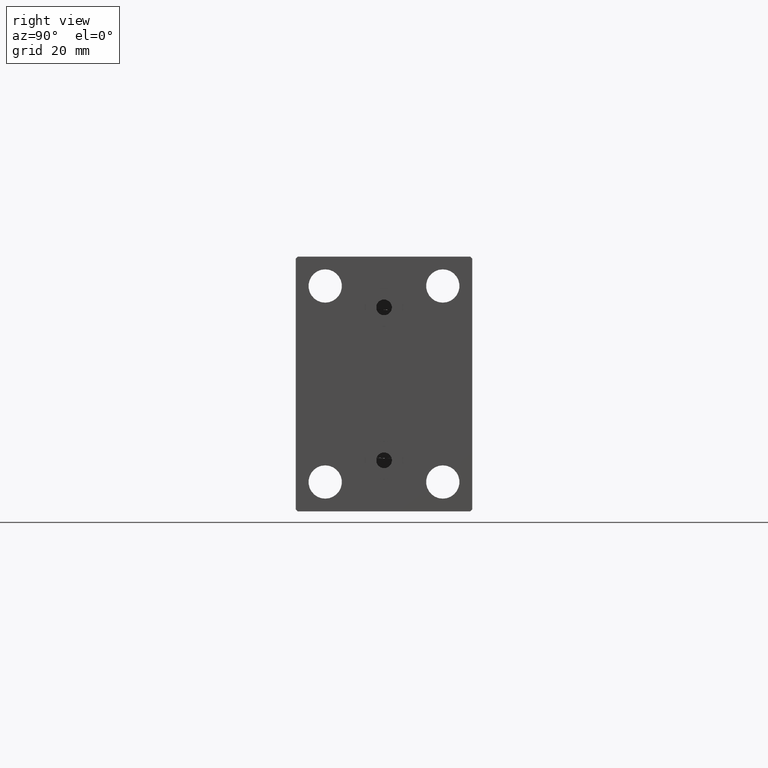
[diagram: clean part render]
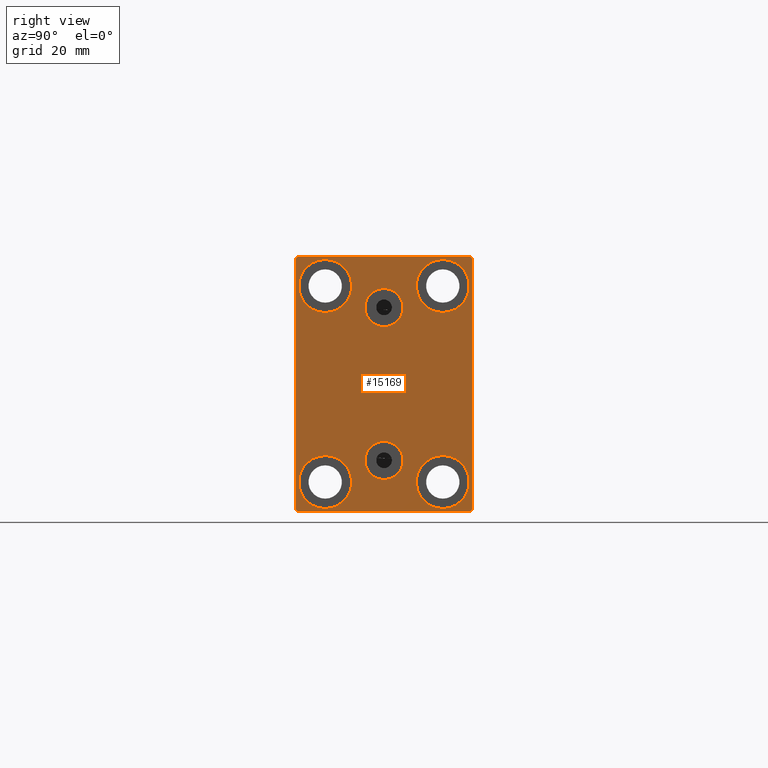
[diagram: same view with one face highlighted and labeled with its STEP entity id]
A machine part, right view. The second image highlights one B-rep face of the part: STEP entity #15169.
In plain terms, the highlighted planar face has unit normal (1, 0, 0).
Its self-contained STEP definition (entity closure, byte-faithful):
#375 = FACE_BOUND ( 'NONE', #43418, .T. ) ;
#522 = DIRECTION ( 'NONE',  ( 0.000000000000000000, 0.000000000000000000, 1.000000000000000000 ) ) ;
#866 = DIRECTION ( 'NONE',  ( -1.000000000000000000, -0.000000000000000000, -0.000000000000000000 ) ) ;
#1616 = VERTEX_POINT ( 'NONE', #44209 ) ;
#1648 = AXIS2_PLACEMENT_3D ( 'NONE', #24427, #32021, #522 ) ;
#1709 = ORIENTED_EDGE ( 'NONE', *, *, #26808, .T. ) ;
#1815 = EDGE_LOOP ( 'NONE', ( #39728, #1709 ) ) ;
#2076 = EDGE_CURVE ( 'NONE', #30644, #5945, #23333, .T. ) ;
#2148 = VERTEX_POINT ( 'NONE', #15151 ) ;
#2380 = ORIENTED_EDGE ( 'NONE', *, *, #27208, .T. ) ;
#2989 = EDGE_CURVE ( 'NONE', #7646, #6230, #31747, .T. ) ;
#3052 = CARTESIAN_POINT ( 'NONE',  ( 130.0000000000000000, -3.571693674697836683E-15, 19.50000000000000355 ) ) ;
#3545 = VECTOR ( 'NONE', #30840, 1000.000000000000000 ) ;
#3552 = DIRECTION ( 'NONE',  ( -1.000000000000000000, -0.000000000000000000, -0.000000000000000000 ) ) ;
#3570 = ORIENTED_EDGE ( 'NONE', *, *, #36454, .T. ) ;
#3635 = EDGE_LOOP ( 'NONE', ( #35395, #19759 ) ) ;
#3898 = CARTESIAN_POINT ( 'NONE',  ( 130.0000000000000000, 2.388061258337338150E-15, -19.49999999999999645 ) ) ;
#4180 = EDGE_CURVE ( 'NONE', #11501, #4599, #18257, .T. ) ;
#4554 = CARTESIAN_POINT ( 'NONE',  ( 130.0000000000000000, 22.00000000000002132, 32.50000000000000000 ) ) ;
#4599 = VERTEX_POINT ( 'NONE', #36423 ) ;
#4834 = AXIS2_PLACEMENT_3D ( 'NONE', #33937, #27026, #41506 ) ;
#5241 = VECTOR ( 'NONE', #21279, 1000.000000000000114 ) ;
#5645 = CARTESIAN_POINT ( 'NONE',  ( 130.0000000000000000, 22.00000000000000000, -32.50000000000000711 ) ) ;
#5945 = VERTEX_POINT ( 'NONE', #36323 ) ;
#6230 = VERTEX_POINT ( 'NONE', #4554 ) ;
#6514 = EDGE_CURVE ( 'NONE', #5945, #30644, #38165, .T. ) ;
#6547 = EDGE_CURVE ( 'NONE', #1616, #7646, #39887, .T. ) ;
#6916 = EDGE_CURVE ( 'NONE', #9654, #35726, #27882, .T. ) ;
#7312 = CIRCLE ( 'NONE', #39719, 4.859999999999999432 ) ;
#7496 = LINE ( 'NONE', #11397, #5241 ) ;
#7507 = CIRCLE ( 'NONE', #28777, 6.749999999999999112 ) ;
#7646 = VERTEX_POINT ( 'NONE', #22269 ) ;
#7908 = LINE ( 'NONE', #29289, #20548 ) ;
#8160 = CARTESIAN_POINT ( 'NONE',  ( 130.0000000000000000, 15.00000000000000355, 25.00000000000000000 ) ) ;
#8164 = DIRECTION ( 'NONE',  ( 0.000000000000000000, 0.000000000000000000, -1.000000000000000000 ) ) ;
#8564 = EDGE_CURVE ( 'NONE', #2148, #15557, #26820, .T. ) ;
#9326 = DIRECTION ( 'NONE',  ( 1.000000000000000000, 0.000000000000000000, 0.000000000000000000 ) ) ;
#9654 = VERTEX_POINT ( 'NONE', #38373 ) ;
#10001 = CARTESIAN_POINT ( 'NONE',  ( 130.0000000000000000, 14.99999999999999645, -25.00000000000000000 ) ) ;
#10487 = DIRECTION ( 'NONE',  ( 0.000000000000000000, 0.000000000000000000, -1.000000000000000000 ) ) ;
#10491 = FACE_BOUND ( 'NONE', #3635, .T. ) ;
#10529 = AXIS2_PLACEMENT_3D ( 'NONE', #3898, #17900, #11005 ) ;
#10653 = EDGE_LOOP ( 'NONE', ( #10700, #10941 ) ) ;
#10700 = ORIENTED_EDGE ( 'NONE', *, *, #2076, .T. ) ;
#10847 = CARTESIAN_POINT ( 'NONE',  ( 130.0000000000000000, -15.00000000000000355, -31.75000000000000000 ) ) ;
#10906 = DIRECTION ( 'NONE',  ( 0.000000000000000000, 0.000000000000000000, 1.000000000000000000 ) ) ;
#10937 = CARTESIAN_POINT ( 'NONE',  ( 130.0000000000000000, 27.25000000000000711, -27.25000000000000711 ) ) ;
#10941 = ORIENTED_EDGE ( 'NONE', *, *, #6514, .T. ) ;
#11005 = DIRECTION ( 'NONE',  ( 0.000000000000000000, 0.000000000000000000, 1.000000000000000000 ) ) ;
#11131 = CARTESIAN_POINT ( 'NONE',  ( 130.0000000000000000, -14.99999999999999645, 25.00000000000000000 ) ) ;
#11222 = VERTEX_POINT ( 'NONE', #5645 ) ;
#11294 = ORIENTED_EDGE ( 'NONE', *, *, #45358, .T. ) ;
#11397 = CARTESIAN_POINT ( 'NONE',  ( 130.0000000000000000, -27.25000000000033040, -27.24999999999957367 ) ) ;
#11501 = VERTEX_POINT ( 'NONE', #10847 ) ;
#12257 = EDGE_CURVE ( 'NONE', #15557, #38896, #7496, .T. ) ;
#12377 = CARTESIAN_POINT ( 'NONE',  ( 130.0000000000000000, 2.983239602722951428E-15, -14.63999999999999702 ) ) ;
#12947 = ORIENTED_EDGE ( 'NONE', *, *, #42979, .T. ) ;
#13110 = EDGE_CURVE ( 'NONE', #31593, #35324, #7507, .T. ) ;
#13918 = DIRECTION ( 'NONE',  ( 0.000000000000000000, -0.7071067811865474617, -0.7071067811865474617 ) ) ;
#14390 = FACE_OUTER_BOUND ( 'NONE', #29024, .T. ) ;
#14833 = FACE_BOUND ( 'NONE', #1815, .T. ) ;
#15151 = CARTESIAN_POINT ( 'NONE',  ( 130.0000000000000000, -22.50000000000000711, 31.99999999999999289 ) ) ;
#15157 = CARTESIAN_POINT ( 'NONE',  ( 130.0000000000000000, -21.99999999999999289, 32.49999999999999289 ) ) ;
#15169 = ADVANCED_FACE ( 'NONE', ( #21052, #41980, #14833, #10491, #24505, #375, #14390 ), #43998, .T. ) ;
#15557 = VERTEX_POINT ( 'NONE', #31084 ) ;
#16102 = ORIENTED_EDGE ( 'NONE', *, *, #20919, .F. ) ;
#16174 = CARTESIAN_POINT ( 'NONE',  ( 130.0000000000000000, 15.00000000000000355, 18.25000000000000355 ) ) ;
#16888 = DIRECTION ( 'NONE',  ( 0.000000000000000000, 0.000000000000000000, 1.000000000000000000 ) ) ;
#17635 = VECTOR ( 'NONE', #20156, 1000.000000000000000 ) ;
#17870 = CIRCLE ( 'NONE', #34036, 4.859999999999999432 ) ;
#17900 = DIRECTION ( 'NONE',  ( 1.000000000000000000, 0.000000000000000000, -0.000000000000000000 ) ) ;
#18257 = CIRCLE ( 'NONE', #22658, 6.749999999999999112 ) ;
#18324 = AXIS2_PLACEMENT_3D ( 'NONE', #8160, #36216, #18500 ) ;
#18500 = DIRECTION ( 'NONE',  ( 0.000000000000000000, 0.000000000000000000, 1.000000000000000000 ) ) ;
#18728 = CARTESIAN_POINT ( 'NONE',  ( 130.0000000000000000, 0.000000000000000000, 0.000000000000000000 ) ) ;
#18944 = CARTESIAN_POINT ( 'NONE',  ( 130.0000000000000000, 22.50000000000000000, -32.50000000000000711 ) ) ;
#19454 = CARTESIAN_POINT ( 'NONE',  ( 130.0000000000000000, -22.50000000000000711, 32.49999999999999289 ) ) ;
#19467 = VECTOR ( 'NONE', #13918, 1000.000000000000114 ) ;
#19759 = ORIENTED_EDGE ( 'NONE', *, *, #6916, .T. ) ;
#20081 = CIRCLE ( 'NONE', #10529, 4.859999999999999432 ) ;
#20156 = DIRECTION ( 'NONE',  ( 0.000000000000000000, 0.000000000000000000, -1.000000000000000000 ) ) ;
#20369 = ORIENTED_EDGE ( 'NONE', *, *, #12257, .T. ) ;
#20548 = VECTOR ( 'NONE', #21925, 1000.000000000000000 ) ;
#20554 = EDGE_CURVE ( 'NONE', #28574, #25941, #20081, .T. ) ;
#20919 = EDGE_CURVE ( 'NONE', #31710, #26143, #17870, .T. ) ;
#21052 = FACE_BOUND ( 'NONE', #33113, .T. ) ;
#21121 = AXIS2_PLACEMENT_3D ( 'NONE', #34957, #41839, #24591 ) ;
#21279 = DIRECTION ( 'NONE',  ( -0.000000000000000000, 0.7071067811865376918, -0.7071067811865573427 ) ) ;
#21582 = ORIENTED_EDGE ( 'NONE', *, *, #35468, .F. ) ;
#21727 = CARTESIAN_POINT ( 'NONE',  ( 130.0000000000000000, -3.571693674697836683E-15, 19.50000000000000355 ) ) ;
#21744 = ORIENTED_EDGE ( 'NONE', *, *, #6547, .T. ) ;
#21925 = DIRECTION ( 'NONE',  ( 0.000000000000000000, -1.000000000000000000, -1.541976423090495387E-16 ) ) ;
#22269 = CARTESIAN_POINT ( 'NONE',  ( 130.0000000000000000, 22.49999999999999289, 32.00000000000004974 ) ) ;
#22400 = DIRECTION ( 'NONE',  ( 0.000000000000000000, -1.067522139062650425E-16, 1.000000000000000000 ) ) ;
#22450 = ORIENTED_EDGE ( 'NONE', *, *, #4180, .T. ) ;
#22658 = AXIS2_PLACEMENT_3D ( 'NONE', #43141, #25663, #30027 ) ;
#23333 = CIRCLE ( 'NONE', #21121, 6.749999999999999112 ) ;
#24245 = DIRECTION ( 'NONE',  ( 0.000000000000000000, 0.000000000000000000, 1.000000000000000000 ) ) ;
#24427 = CARTESIAN_POINT ( 'NONE',  ( 130.0000000000000000, -15.00000000000000355, -25.00000000000000000 ) ) ;
#24505 = FACE_BOUND ( 'NONE', #10653, .T. ) ;
#24591 = DIRECTION ( 'NONE',  ( 0.000000000000000000, 0.000000000000000000, 1.000000000000000000 ) ) ;
#24927 = CARTESIAN_POINT ( 'NONE',  ( 130.0000000000000000, -3.571693674697836683E-15, 14.64000000000000412 ) ) ;
#25291 = CARTESIAN_POINT ( 'NONE',  ( 130.0000000000000000, -22.00000000000003197, -32.50000000000000711 ) ) ;
#25663 = DIRECTION ( 'NONE',  ( -1.000000000000000000, -0.000000000000000000, -0.000000000000000000 ) ) ;
#25941 = VERTEX_POINT ( 'NONE', #44729 ) ;
#26124 = CARTESIAN_POINT ( 'NONE',  ( 130.0000000000000000, 14.99999999999999645, -25.00000000000000000 ) ) ;
#26143 = VERTEX_POINT ( 'NONE', #24927 ) ;
#26808 = EDGE_CURVE ( 'NONE', #35324, #31593, #27553, .T. ) ;
#26820 = LINE ( 'NONE', #19454, #17635 ) ;
#26826 = CARTESIAN_POINT ( 'NONE',  ( 130.0000000000000000, 14.99999999999999645, -18.25000000000000355 ) ) ;
#27026 = DIRECTION ( 'NONE',  ( -1.000000000000000000, -0.000000000000000000, -0.000000000000000000 ) ) ;
#27082 = LINE ( 'NONE', #44553, #34938 ) ;
#27208 = EDGE_CURVE ( 'NONE', #33933, #2148, #38741, .T. ) ;
#27520 = ORIENTED_EDGE ( 'NONE', *, *, #8564, .T. ) ;
#27553 = CIRCLE ( 'NONE', #37879, 6.749999999999999112 ) ;
#27882 = CIRCLE ( 'NONE', #43264, 6.749999999999999112 ) ;
#28574 = VERTEX_POINT ( 'NONE', #12377 ) ;
#28777 = AXIS2_PLACEMENT_3D ( 'NONE', #10001, #3552, #16888 ) ;
#28936 = CARTESIAN_POINT ( 'NONE',  ( 130.0000000000000000, 14.99999999999999645, -31.75000000000000000 ) ) ;
#28984 = EDGE_CURVE ( 'NONE', #25941, #28574, #34976, .T. ) ;
#29024 = EDGE_LOOP ( 'NONE', ( #3570, #2380, #27520, #20369, #36550, #11294, #21744, #36919 ) ) ;
#29289 = CARTESIAN_POINT ( 'NONE',  ( 130.0000000000000000, 22.49999999999999289, 32.50000000000000000 ) ) ;
#29356 = DIRECTION ( 'NONE',  ( 0.000000000000000000, 0.000000000000000000, 1.000000000000000000 ) ) ;
#30027 = DIRECTION ( 'NONE',  ( 0.000000000000000000, 0.000000000000000000, 1.000000000000000000 ) ) ;
#30644 = VERTEX_POINT ( 'NONE', #16174 ) ;
#30840 = DIRECTION ( 'NONE',  ( -0.000000000000000000, -0.7071067811865622277, 0.7071067811865328068 ) ) ;
#31084 = CARTESIAN_POINT ( 'NONE',  ( 130.0000000000000000, -22.50000000000000711, -32.00000000000002132 ) ) ;
#31290 = CARTESIAN_POINT ( 'NONE',  ( 130.0000000000000000, 27.24999999999955236, 27.25000000000068567 ) ) ;
#31593 = VERTEX_POINT ( 'NONE', #28936 ) ;
#31710 = VERTEX_POINT ( 'NONE', #37196 ) ;
#31747 = LINE ( 'NONE', #31290, #3545 ) ;
#32021 = DIRECTION ( 'NONE',  ( -1.000000000000000000, -0.000000000000000000, -0.000000000000000000 ) ) ;
#32618 = EDGE_CURVE ( 'NONE', #38896, #11222, #27082, .T. ) ;
#32917 = EDGE_CURVE ( 'NONE', #35726, #9654, #34235, .T. ) ;
#32996 = DIRECTION ( 'NONE',  ( 1.000000000000000000, 0.000000000000000000, 0.000000000000000000 ) ) ;
#33113 = EDGE_LOOP ( 'NONE', ( #21582, #16102 ) ) ;
#33933 = VERTEX_POINT ( 'NONE', #15157 ) ;
#33937 = CARTESIAN_POINT ( 'NONE',  ( 130.0000000000000000, -14.99999999999999645, 25.00000000000000000 ) ) ;
#34036 = AXIS2_PLACEMENT_3D ( 'NONE', #3052, #9326, #43794 ) ;
#34235 = CIRCLE ( 'NONE', #4834, 6.749999999999999112 ) ;
#34675 = DIRECTION ( 'NONE',  ( 0.000000000000000000, 1.000000000000000000, 0.000000000000000000 ) ) ;
#34837 = DIRECTION ( 'NONE',  ( 1.000000000000000000, 0.000000000000000000, -0.000000000000000000 ) ) ;
#34938 = VECTOR ( 'NONE', #34675, 1000.000000000000000 ) ;
#34957 = CARTESIAN_POINT ( 'NONE',  ( 130.0000000000000000, 15.00000000000000355, 25.00000000000000000 ) ) ;
#34976 = CIRCLE ( 'NONE', #42311, 4.859999999999999432 ) ;
#35314 = DIRECTION ( 'NONE',  ( 1.000000000000000000, 0.000000000000000000, 0.000000000000000000 ) ) ;
#35324 = VERTEX_POINT ( 'NONE', #26826 ) ;
#35395 = ORIENTED_EDGE ( 'NONE', *, *, #32917, .T. ) ;
#35468 = EDGE_CURVE ( 'NONE', #26143, #31710, #7312, .T. ) ;
#35726 = VERTEX_POINT ( 'NONE', #41255 ) ;
#36216 = DIRECTION ( 'NONE',  ( -1.000000000000000000, -0.000000000000000000, -0.000000000000000000 ) ) ;
#36323 = CARTESIAN_POINT ( 'NONE',  ( 130.0000000000000000, 15.00000000000000355, 31.75000000000000000 ) ) ;
#36423 = CARTESIAN_POINT ( 'NONE',  ( 130.0000000000000000, -15.00000000000000355, -18.25000000000000355 ) ) ;
#36454 = EDGE_CURVE ( 'NONE', #6230, #33933, #7908, .T. ) ;
#36550 = ORIENTED_EDGE ( 'NONE', *, *, #32618, .T. ) ;
#36919 = ORIENTED_EDGE ( 'NONE', *, *, #2989, .T. ) ;
#37196 = CARTESIAN_POINT ( 'NONE',  ( 130.0000000000000000, -2.976515330312223406E-15, 24.36000000000000298 ) ) ;
#37879 = AXIS2_PLACEMENT_3D ( 'NONE', #26124, #866, #29356 ) ;
#38165 = CIRCLE ( 'NONE', #18324, 6.749999999999999112 ) ;
#38373 = CARTESIAN_POINT ( 'NONE',  ( 130.0000000000000000, -14.99999999999999645, 31.75000000000000000 ) ) ;
#38741 = LINE ( 'NONE', #45401, #19467 ) ;
#38896 = VERTEX_POINT ( 'NONE', #25291 ) ;
#39182 = DIRECTION ( 'NONE',  ( -1.000000000000000000, -0.000000000000000000, -0.000000000000000000 ) ) ;
#39719 = AXIS2_PLACEMENT_3D ( 'NONE', #21727, #35314, #10487 ) ;
#39728 = ORIENTED_EDGE ( 'NONE', *, *, #13110, .T. ) ;
#39887 = LINE ( 'NONE', #18944, #41828 ) ;
#41255 = CARTESIAN_POINT ( 'NONE',  ( 130.0000000000000000, -14.99999999999999645, 18.25000000000000355 ) ) ;
#41300 = CIRCLE ( 'NONE', #1648, 6.749999999999999112 ) ;
#41368 = VECTOR ( 'NONE', #42648, 1000.000000000000114 ) ;
#41506 = DIRECTION ( 'NONE',  ( 0.000000000000000000, 0.000000000000000000, 1.000000000000000000 ) ) ;
#41704 = EDGE_LOOP ( 'NONE', ( #42112, #44980 ) ) ;
#41828 = VECTOR ( 'NONE', #22400, 1000.000000000000000 ) ;
#41839 = DIRECTION ( 'NONE',  ( -1.000000000000000000, -0.000000000000000000, -0.000000000000000000 ) ) ;
#41924 = AXIS2_PLACEMENT_3D ( 'NONE', #18728, #32996, #8164 ) ;
#41980 = FACE_BOUND ( 'NONE', #41704, .T. ) ;
#42112 = ORIENTED_EDGE ( 'NONE', *, *, #28984, .F. ) ;
#42311 = AXIS2_PLACEMENT_3D ( 'NONE', #44727, #34837, #24245 ) ;
#42648 = DIRECTION ( 'NONE',  ( -0.000000000000000000, 0.7071067811865474617, 0.7071067811865474617 ) ) ;
#42979 = EDGE_CURVE ( 'NONE', #4599, #11501, #41300, .T. ) ;
#43141 = CARTESIAN_POINT ( 'NONE',  ( 130.0000000000000000, -15.00000000000000355, -25.00000000000000000 ) ) ;
#43264 = AXIS2_PLACEMENT_3D ( 'NONE', #11131, #39182, #10906 ) ;
#43322 = LINE ( 'NONE', #10937, #41368 ) ;
#43418 = EDGE_LOOP ( 'NONE', ( #22450, #12947 ) ) ;
#43794 = DIRECTION ( 'NONE',  ( 0.000000000000000000, 0.000000000000000000, -1.000000000000000000 ) ) ;
#43998 = PLANE ( 'NONE',  #41924 ) ;
#44209 = CARTESIAN_POINT ( 'NONE',  ( 130.0000000000000000, 22.50000000000000000, -32.00000000000002132 ) ) ;
#44553 = CARTESIAN_POINT ( 'NONE',  ( 130.0000000000000000, -22.50000000000000711, -32.50000000000000711 ) ) ;
#44727 = CARTESIAN_POINT ( 'NONE',  ( 130.0000000000000000, 2.388061258337338150E-15, -19.49999999999999645 ) ) ;
#44729 = CARTESIAN_POINT ( 'NONE',  ( 130.0000000000000000, 2.388061258337338150E-15, -24.35999999999999588 ) ) ;
#44980 = ORIENTED_EDGE ( 'NONE', *, *, #20554, .F. ) ;
#45358 = EDGE_CURVE ( 'NONE', #11222, #1616, #43322, .T. ) ;
#45401 = CARTESIAN_POINT ( 'NONE',  ( 130.0000000000000000, -27.25000000000000000, 27.25000000000000000 ) ) ;